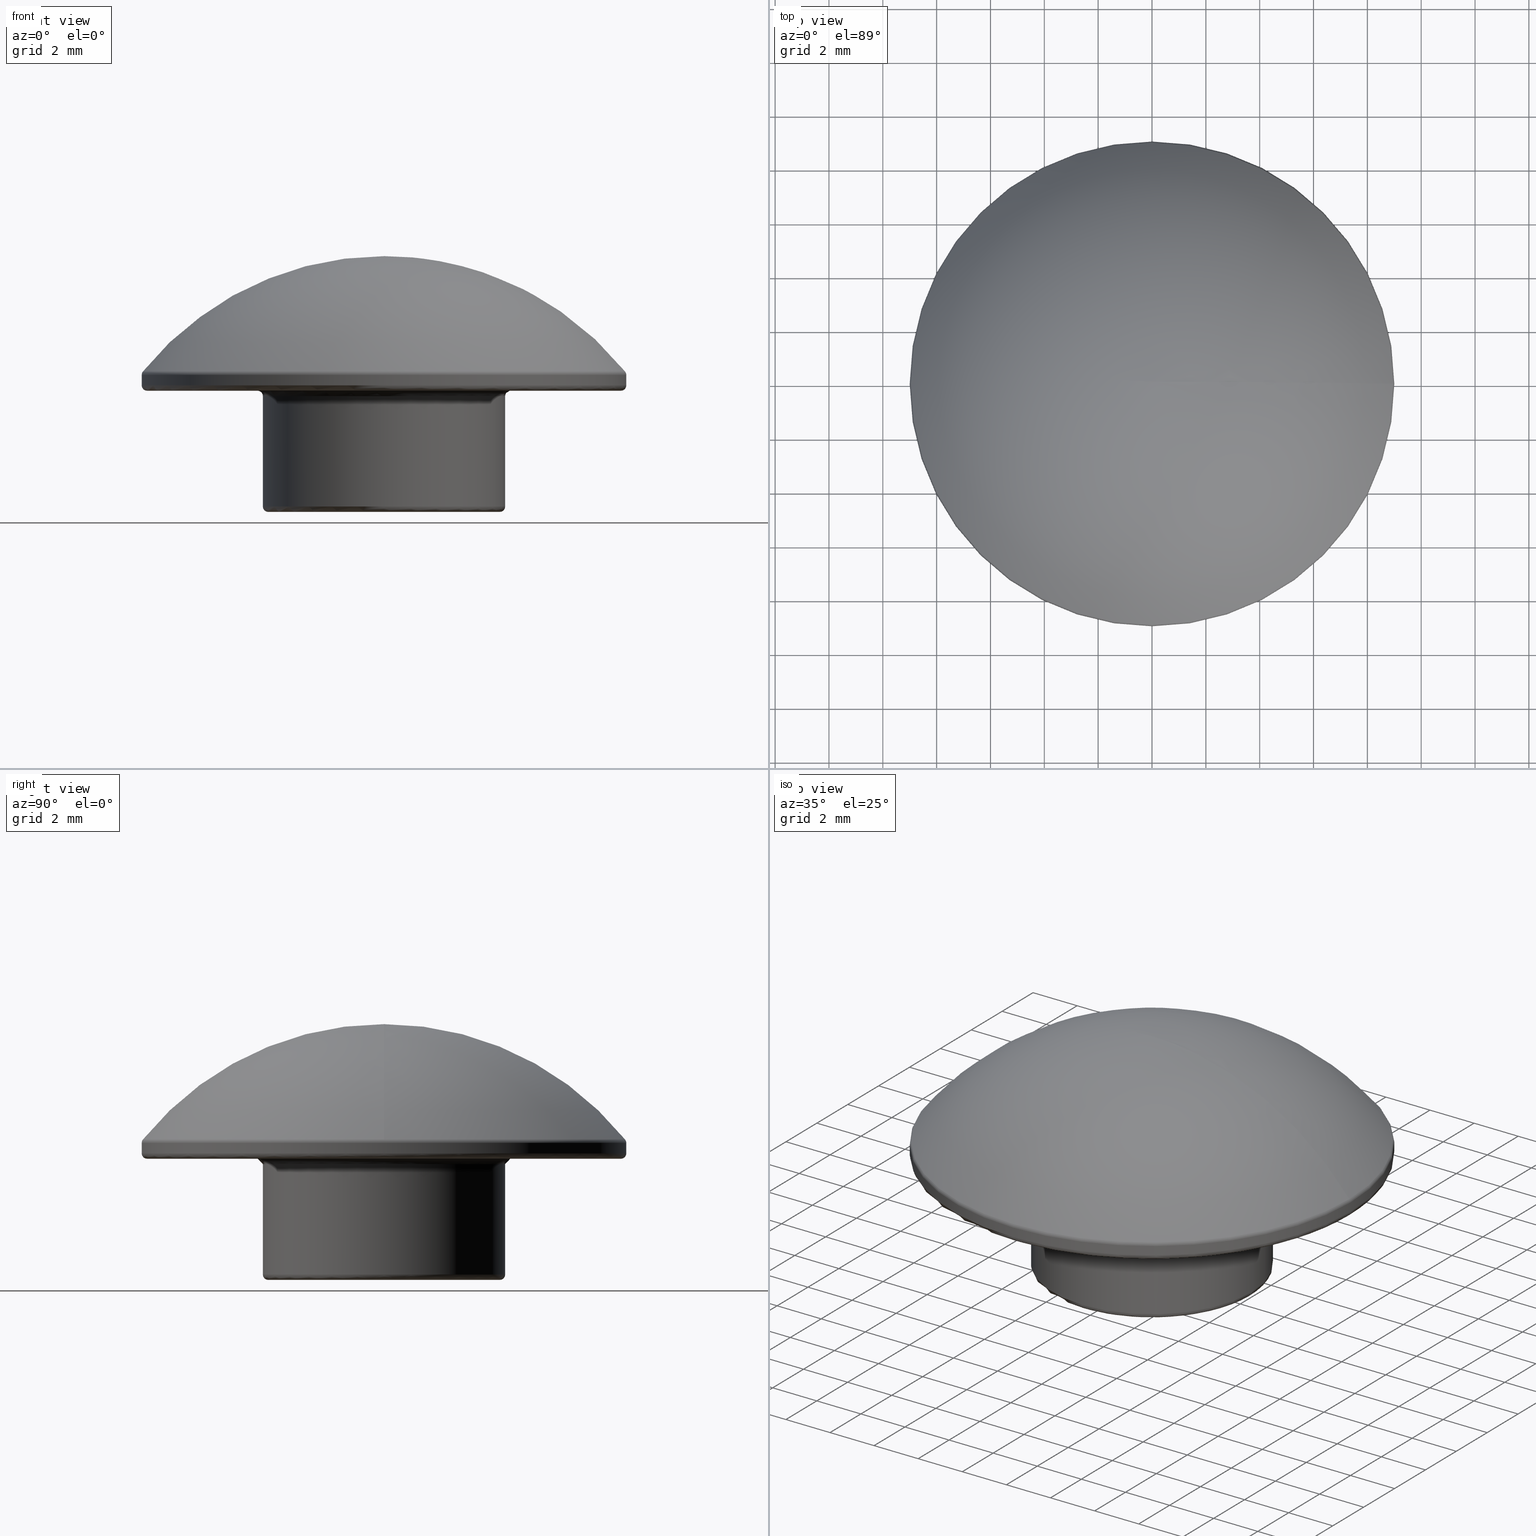
[diagram: canonical four-view strip — front | top / right | iso, engineering-drawing reading convention]
A machine part, canonical four-view strip (front | top / right | iso — engineering-drawing reading convention). The complete STEP part file that produces these views, byte-faithful:
ISO-10303-21;
HEADER;
/* Generated by software containing ST-Developer
 * from STEP Tools, Inc. (www.steptools.com) 
 */

FILE_DESCRIPTION(
/* description */ ('TAPPO M4 INOX'),
/* implementation_level */ '2;1');

FILE_NAME(
/* name */ 
'Q:\\Catalogo\\2_Accessori Dierre\\Per Download Web\\CATALOGO ACCESSOR
I PER RIPARI\\PAGINA 72\\DTPXX0000018.stp',
/* time_stamp */ '2018-01-30T15:22:26+01:00',
/* author */ ('fzagni'),
/* organization */ (''),
/* preprocessor_version */ 'ST-DEVELOPER v16.1',
/* originating_system */ 'Autodesk Inventor 2016',
/* authorisation */ '');

FILE_SCHEMA (('AUTOMOTIVE_DESIGN { 1 0 10303 214 3 1 1 }'));
ENDSEC;

DATA;
#10=MECHANICAL_DESIGN_GEOMETRIC_PRESENTATION_REPRESENTATION('',(#13),#249);
#11=SHAPE_REPRESENTATION_RELATIONSHIP('SRR','None',#258,#12);
#12=ADVANCED_BREP_SHAPE_REPRESENTATION('',(#14),#248);
#13=STYLED_ITEM('',(#267),#14);
#14=MANIFOLD_SOLID_BREP('Solido2',#138);
#15=CONICAL_SURFACE('',#158,1.771,45.);
#16=SPHERICAL_SURFACE('',#156,11.5);
#17=PLANE('',#145);
#18=PLANE('',#149);
#19=PLANE('',#162);
#20=CYLINDRICAL_SURFACE('',#143,4.5);
#21=CYLINDRICAL_SURFACE('',#154,8.99992883305196);
#22=CYLINDRICAL_SURFACE('',#160,1.621);
#23=FACE_BOUND('',#46,.T.);
#24=FACE_BOUND('',#48,.T.);
#25=FACE_BOUND('',#50,.T.);
#26=FACE_BOUND('',#52,.T.);
#27=FACE_BOUND('',#54,.T.);
#28=FACE_BOUND('',#56,.T.);
#29=FACE_BOUND('',#58,.T.);
#30=FACE_BOUND('',#61,.T.);
#31=FACE_BOUND('',#63,.T.);
#32=FACE_BOUND('',#65,.T.);
#33=FACE_OUTER_BOUND('',#45,.T.);
#34=FACE_OUTER_BOUND('',#47,.T.);
#35=FACE_OUTER_BOUND('',#49,.T.);
#36=FACE_OUTER_BOUND('',#51,.T.);
#37=FACE_OUTER_BOUND('',#53,.T.);
#38=FACE_OUTER_BOUND('',#55,.T.);
#39=FACE_OUTER_BOUND('',#57,.T.);
#40=FACE_OUTER_BOUND('',#59,.T.);
#41=FACE_OUTER_BOUND('',#60,.T.);
#42=FACE_OUTER_BOUND('',#62,.T.);
#43=FACE_OUTER_BOUND('',#64,.T.);
#44=FACE_OUTER_BOUND('',#66,.T.);
#45=EDGE_LOOP('',(#100));
#46=EDGE_LOOP('',(#101));
#47=EDGE_LOOP('',(#102));
#48=EDGE_LOOP('',(#103));
#49=EDGE_LOOP('',(#104));
#50=EDGE_LOOP('',(#105));
#51=EDGE_LOOP('',(#106));
#52=EDGE_LOOP('',(#107));
#53=EDGE_LOOP('',(#108));
#54=EDGE_LOOP('',(#109));
#55=EDGE_LOOP('',(#110));
#56=EDGE_LOOP('',(#111));
#57=EDGE_LOOP('',(#112));
#58=EDGE_LOOP('',(#113));
#59=EDGE_LOOP('',(#114));
#60=EDGE_LOOP('',(#115));
#61=EDGE_LOOP('',(#116));
#62=EDGE_LOOP('',(#117));
#63=EDGE_LOOP('',(#118));
#64=EDGE_LOOP('',(#119));
#65=EDGE_LOOP('',(#120));
#66=EDGE_LOOP('',(#121));
#67=CIRCLE('',#141,4.5);
#68=CIRCLE('',#142,4.7);
#69=CIRCLE('',#144,4.5);
#70=CIRCLE('',#146,8.79992883305196);
#71=CIRCLE('',#148,4.3);
#72=CIRCLE('',#150,1.921);
#73=CIRCLE('',#152,8.99992883305196);
#74=CIRCLE('',#153,8.95567978584934);
#75=CIRCLE('',#155,8.99992883305196);
#76=CIRCLE('',#159,1.621);
#77=CIRCLE('',#161,1.621);
#78=VERTEX_POINT('',#213);
#79=VERTEX_POINT('',#215);
#80=VERTEX_POINT('',#218);
#81=VERTEX_POINT('',#221);
#82=VERTEX_POINT('',#224);
#83=VERTEX_POINT('',#227);
#84=VERTEX_POINT('',#230);
#85=VERTEX_POINT('',#232);
#86=VERTEX_POINT('',#235);
#87=VERTEX_POINT('',#240);
#88=VERTEX_POINT('',#243);
#89=EDGE_CURVE('',#78,#78,#67,.T.);
#90=EDGE_CURVE('',#79,#79,#68,.T.);
#91=EDGE_CURVE('',#80,#80,#69,.T.);
#92=EDGE_CURVE('',#81,#81,#70,.T.);
#93=EDGE_CURVE('',#82,#82,#71,.T.);
#94=EDGE_CURVE('',#83,#83,#72,.T.);
#95=EDGE_CURVE('',#84,#84,#73,.T.);
#96=EDGE_CURVE('',#85,#85,#74,.T.);
#97=EDGE_CURVE('',#86,#86,#75,.T.);
#98=EDGE_CURVE('',#87,#87,#76,.T.);
#99=EDGE_CURVE('',#88,#88,#77,.T.);
#100=ORIENTED_EDGE('',*,*,#89,.T.);
#101=ORIENTED_EDGE('',*,*,#90,.T.);
#102=ORIENTED_EDGE('',*,*,#91,.F.);
#103=ORIENTED_EDGE('',*,*,#89,.F.);
#104=ORIENTED_EDGE('',*,*,#92,.F.);
#105=ORIENTED_EDGE('',*,*,#90,.F.);
#106=ORIENTED_EDGE('',*,*,#91,.T.);
#107=ORIENTED_EDGE('',*,*,#93,.T.);
#108=ORIENTED_EDGE('',*,*,#93,.F.);
#109=ORIENTED_EDGE('',*,*,#94,.F.);
#110=ORIENTED_EDGE('',*,*,#95,.T.);
#111=ORIENTED_EDGE('',*,*,#96,.T.);
#112=ORIENTED_EDGE('',*,*,#97,.F.);
#113=ORIENTED_EDGE('',*,*,#95,.F.);
#114=ORIENTED_EDGE('',*,*,#96,.F.);
#115=ORIENTED_EDGE('',*,*,#97,.T.);
#116=ORIENTED_EDGE('',*,*,#92,.T.);
#117=ORIENTED_EDGE('',*,*,#98,.T.);
#118=ORIENTED_EDGE('',*,*,#94,.T.);
#119=ORIENTED_EDGE('',*,*,#99,.F.);
#120=ORIENTED_EDGE('',*,*,#98,.F.);
#121=ORIENTED_EDGE('',*,*,#99,.T.);
#122=TOROIDAL_SURFACE('',#140,4.7,0.2);
#123=TOROIDAL_SURFACE('',#147,4.3,0.2);
#124=TOROIDAL_SURFACE('',#151,8.79992883305196,0.2);
#125=TOROIDAL_SURFACE('',#157,8.79992883305196,0.2);
#126=ADVANCED_FACE('',(#33,#23),#122,.F.);
#127=ADVANCED_FACE('',(#34,#24),#20,.T.);
#128=ADVANCED_FACE('',(#35,#25),#17,.F.);
#129=ADVANCED_FACE('',(#36,#26),#123,.T.);
#130=ADVANCED_FACE('',(#37,#27),#18,.F.);
#131=ADVANCED_FACE('',(#38,#28),#124,.T.);
#132=ADVANCED_FACE('',(#39,#29),#21,.T.);
#133=ADVANCED_FACE('',(#40),#16,.T.);
#134=ADVANCED_FACE('',(#41,#30),#125,.T.);
#135=ADVANCED_FACE('',(#42,#31),#15,.F.);
#136=ADVANCED_FACE('',(#43,#32),#22,.F.);
#137=ADVANCED_FACE('',(#44),#19,.T.);
#138=CLOSED_SHELL('',(#126,#127,#128,#129,#130,#131,#132,#133,#134,#135,
#136,#137));
#139=AXIS2_PLACEMENT_3D('placement',#211,#163,#164);
#140=AXIS2_PLACEMENT_3D('',#212,#165,#166);
#141=AXIS2_PLACEMENT_3D('',#214,#167,#168);
#142=AXIS2_PLACEMENT_3D('',#216,#169,#170);
#143=AXIS2_PLACEMENT_3D('',#217,#171,#172);
#144=AXIS2_PLACEMENT_3D('',#219,#173,#174);
#145=AXIS2_PLACEMENT_3D('',#220,#175,#176);
#146=AXIS2_PLACEMENT_3D('',#222,#177,#178);
#147=AXIS2_PLACEMENT_3D('',#223,#179,#180);
#148=AXIS2_PLACEMENT_3D('',#225,#181,#182);
#149=AXIS2_PLACEMENT_3D('',#226,#183,#184);
#150=AXIS2_PLACEMENT_3D('',#228,#185,#186);
#151=AXIS2_PLACEMENT_3D('',#229,#187,#188);
#152=AXIS2_PLACEMENT_3D('',#231,#189,#190);
#153=AXIS2_PLACEMENT_3D('',#233,#191,#192);
#154=AXIS2_PLACEMENT_3D('',#234,#193,#194);
#155=AXIS2_PLACEMENT_3D('',#236,#195,#196);
#156=AXIS2_PLACEMENT_3D('',#237,#197,#198);
#157=AXIS2_PLACEMENT_3D('',#238,#199,#200);
#158=AXIS2_PLACEMENT_3D('',#239,#201,#202);
#159=AXIS2_PLACEMENT_3D('',#241,#203,#204);
#160=AXIS2_PLACEMENT_3D('',#242,#205,#206);
#161=AXIS2_PLACEMENT_3D('',#244,#207,#208);
#162=AXIS2_PLACEMENT_3D('',#245,#209,#210);
#163=DIRECTION('axis',(0.,0.,1.));
#164=DIRECTION('refdir',(1.,0.,0.));
#165=DIRECTION('center_axis',(0.,0.,1.));
#166=DIRECTION('ref_axis',(1.,0.,0.));
#167=DIRECTION('center_axis',(0.,0.,1.));
#168=DIRECTION('ref_axis',(1.,0.,0.));
#169=DIRECTION('center_axis',(0.,0.,-1.));
#170=DIRECTION('ref_axis',(1.,0.,0.));
#171=DIRECTION('center_axis',(0.,0.,-1.));
#172=DIRECTION('ref_axis',(1.,0.,0.));
#173=DIRECTION('center_axis',(0.,0.,-1.));
#174=DIRECTION('ref_axis',(1.,0.,0.));
#175=DIRECTION('center_axis',(0.,0.,1.));
#176=DIRECTION('ref_axis',(1.,0.,0.));
#177=DIRECTION('center_axis',(0.,0.,1.));
#178=DIRECTION('ref_axis',(1.,0.,0.));
#179=DIRECTION('center_axis',(0.,0.,-1.));
#180=DIRECTION('ref_axis',(-1.,0.,0.));
#181=DIRECTION('center_axis',(0.,0.,1.));
#182=DIRECTION('ref_axis',(1.,0.,0.));
#183=DIRECTION('center_axis',(0.,0.,1.));
#184=DIRECTION('ref_axis',(1.,0.,0.));
#185=DIRECTION('center_axis',(0.,0.,-1.));
#186=DIRECTION('ref_axis',(1.,0.,0.));
#187=DIRECTION('center_axis',(0.,0.,1.));
#188=DIRECTION('ref_axis',(1.,0.,0.));
#189=DIRECTION('center_axis',(0.,0.,1.));
#190=DIRECTION('ref_axis',(1.,6.12323399573677E-17,0.));
#191=DIRECTION('center_axis',(0.,0.,-1.));
#192=DIRECTION('ref_axis',(1.,6.12323399573677E-17,0.));
#193=DIRECTION('center_axis',(0.,0.,-1.));
#194=DIRECTION('ref_axis',(1.,0.,0.));
#195=DIRECTION('center_axis',(0.,0.,-1.));
#196=DIRECTION('ref_axis',(1.,0.,0.));
#197=DIRECTION('center_axis',(6.12323399573677E-17,0.,1.));
#198=DIRECTION('ref_axis',(1.,0.,0.));
#199=DIRECTION('center_axis',(0.,0.,-1.));
#200=DIRECTION('ref_axis',(-1.,0.,0.));
#201=DIRECTION('center_axis',(0.,0.,-1.));
#202=DIRECTION('ref_axis',(1.,0.,0.));
#203=DIRECTION('center_axis',(0.,0.,1.));
#204=DIRECTION('ref_axis',(1.,0.,0.));
#205=DIRECTION('center_axis',(0.,0.,-1.));
#206=DIRECTION('ref_axis',(-1.,0.,0.));
#207=DIRECTION('center_axis',(0.,0.,-1.));
#208=DIRECTION('ref_axis',(-1.,0.,0.));
#209=DIRECTION('center_axis',(0.,0.,-1.));
#210=DIRECTION('ref_axis',(-1.,0.,0.));
#211=CARTESIAN_POINT('',(0.,0.,0.));
#212=CARTESIAN_POINT('Origin',(0.,0.,6.3));
#213=CARTESIAN_POINT('',(-4.5,-5.51091059616309E-16,6.3));
#214=CARTESIAN_POINT('Origin',(0.,0.,6.3));
#215=CARTESIAN_POINT('',(-4.7,5.75583995599256E-16,6.5));
#216=CARTESIAN_POINT('Origin',(0.,0.,6.5));
#217=CARTESIAN_POINT('Origin',(0.,0.,6.5));
#218=CARTESIAN_POINT('',(-4.5,5.51091059616309E-16,2.2));
#219=CARTESIAN_POINT('Origin',(0.,0.,2.2));
#220=CARTESIAN_POINT('Origin',(5.03044747988501E-16,2.05598482169455E-16,
6.5));
#221=CARTESIAN_POINT('',(-8.79992883305196,-1.07768046781216E-15,6.5));
#222=CARTESIAN_POINT('Origin',(0.,0.,6.5));
#223=CARTESIAN_POINT('Origin',(0.,0.,2.2));
#224=CARTESIAN_POINT('',(-4.3,-5.26598123633362E-16,2.));
#225=CARTESIAN_POINT('Origin',(0.,0.,2.));
#226=CARTESIAN_POINT('Origin',(2.51521111380092E-16,1.02798428206033E-16,
2.));
#227=CARTESIAN_POINT('',(-1.921,2.35254650116207E-16,2.));
#228=CARTESIAN_POINT('Origin',(0.,0.,2.));
#229=CARTESIAN_POINT('Origin',(0.,0.,7.08881178570999));
#230=CARTESIAN_POINT('',(-8.99992883305196,-1.65326010569266E-15,7.08881178570999));
#231=CARTESIAN_POINT('Origin',(0.,0.,7.08881178570999));
#232=CARTESIAN_POINT('',(-8.95567978584934,5.48377229196452E-16,7.21427748103229));
#233=CARTESIAN_POINT('Origin',(0.,0.,7.21427748103229));
#234=CARTESIAN_POINT('Origin',(0.,0.,7.159));
#235=CARTESIAN_POINT('',(-8.99992883305196,1.10217340379511E-15,6.7));
#236=CARTESIAN_POINT('Origin',(0.,0.,6.7));
#237=CARTESIAN_POINT('Origin',(0.,0.,0.));
#238=CARTESIAN_POINT('Origin',(0.,0.,6.7));
#239=CARTESIAN_POINT('Origin',(0.,0.,2.15));
#240=CARTESIAN_POINT('',(-1.621,-1.98515246141786E-16,2.3));
#241=CARTESIAN_POINT('Origin',(0.,0.,2.3));
#242=CARTESIAN_POINT('Origin',(0.,0.,6.25));
#243=CARTESIAN_POINT('',(-1.621,0.,10.5));
#244=CARTESIAN_POINT('Origin',(0.,0.,10.5));
#245=CARTESIAN_POINT('Origin',(0.,0.,10.5));
#246=UNCERTAINTY_MEASURE_WITH_UNIT(LENGTH_MEASURE(0.01),#250,
'DISTANCE_ACCURACY_VALUE',
'Maximum model space distance between geometric entities at asserted c
onnectivities');
#247=UNCERTAINTY_MEASURE_WITH_UNIT(LENGTH_MEASURE(1.E-6),#250,
'DISTANCE_ACCURACY_VALUE',
'Maximum model space distance between geometric entities at asserted c
onnectivities');
#248=(
GEOMETRIC_REPRESENTATION_CONTEXT(3)
GLOBAL_UNCERTAINTY_ASSIGNED_CONTEXT((#246))
GLOBAL_UNIT_ASSIGNED_CONTEXT((#250,#253,#251))
REPRESENTATION_CONTEXT('','3D')
);
#249=(
GEOMETRIC_REPRESENTATION_CONTEXT(3)
GLOBAL_UNCERTAINTY_ASSIGNED_CONTEXT((#247))
GLOBAL_UNIT_ASSIGNED_CONTEXT((#250,#253,#251))
REPRESENTATION_CONTEXT('','3D')
);
#250=(
LENGTH_UNIT()
NAMED_UNIT(*)
SI_UNIT(.MILLI.,.METRE.)
);
#251=(
NAMED_UNIT(*)
SI_UNIT($,.STERADIAN.)
SOLID_ANGLE_UNIT()
);
#252=DIMENSIONAL_EXPONENTS(0.,0.,0.,0.,0.,0.,0.);
#253=(
CONVERSION_BASED_UNIT('degree',#255)
NAMED_UNIT(#252)
PLANE_ANGLE_UNIT()
);
#254=(
NAMED_UNIT(*)
PLANE_ANGLE_UNIT()
SI_UNIT($,.RADIAN.)
);
#255=PLANE_ANGLE_MEASURE_WITH_UNIT(PLANE_ANGLE_MEASURE(0.01745329252),#254);
#256=SHAPE_DEFINITION_REPRESENTATION(#257,#258);
#257=PRODUCT_DEFINITION_SHAPE('',$,#260);
#258=SHAPE_REPRESENTATION('',(#139),#248);
#259=PRODUCT_DEFINITION_CONTEXT('part definition',#264,'design');
#260=PRODUCT_DEFINITION('XT90152','XT90152',#261,#259);
#261=PRODUCT_DEFINITION_FORMATION('','A',#266);
#262=PRODUCT_RELATED_PRODUCT_CATEGORY('XT90152','XT90152',(#266));
#263=APPLICATION_PROTOCOL_DEFINITION('international standard',
'automotive_design',2009,#264);
#264=APPLICATION_CONTEXT(
'Core Data for Automotive Mechanical Design Process');
#265=PRODUCT_CONTEXT('part definition',#264,'mechanical');
#266=PRODUCT('XT90152','XT90152',$,(#265));
#267=PRESENTATION_STYLE_ASSIGNMENT((#268));
#268=SURFACE_STYLE_USAGE(.BOTH.,#269);
#269=SURFACE_SIDE_STYLE('',(#270));
#270=SURFACE_STYLE_FILL_AREA(#271);
#271=FILL_AREA_STYLE('',(#272));
#272=FILL_AREA_STYLE_COLOUR('',#273);
#273=COLOUR_RGB('',0.745098039215686,0.737254901960784,0.729411764705882);
ENDSEC;
END-ISO-10303-21;
